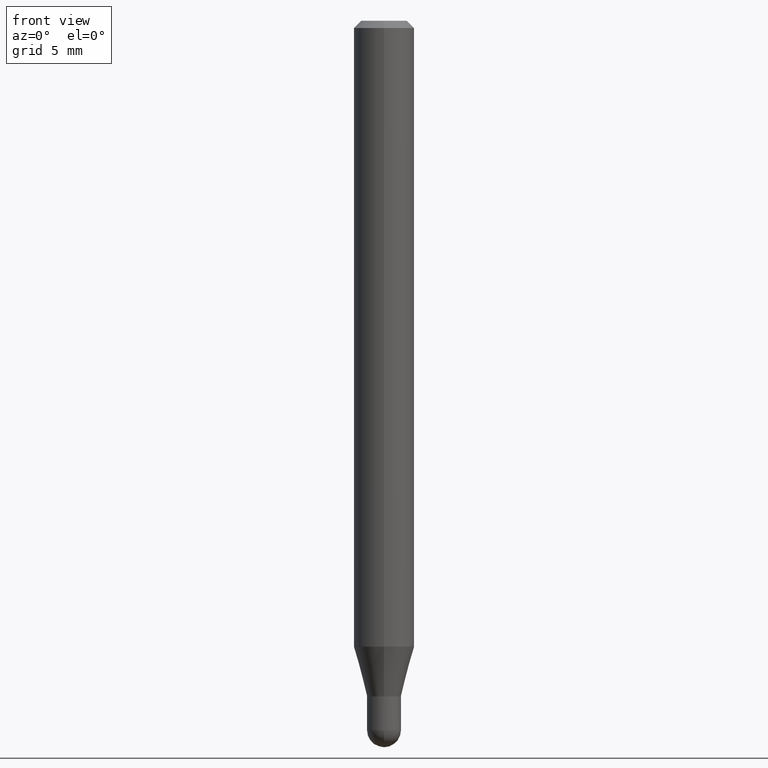
[diagram: clean part render]
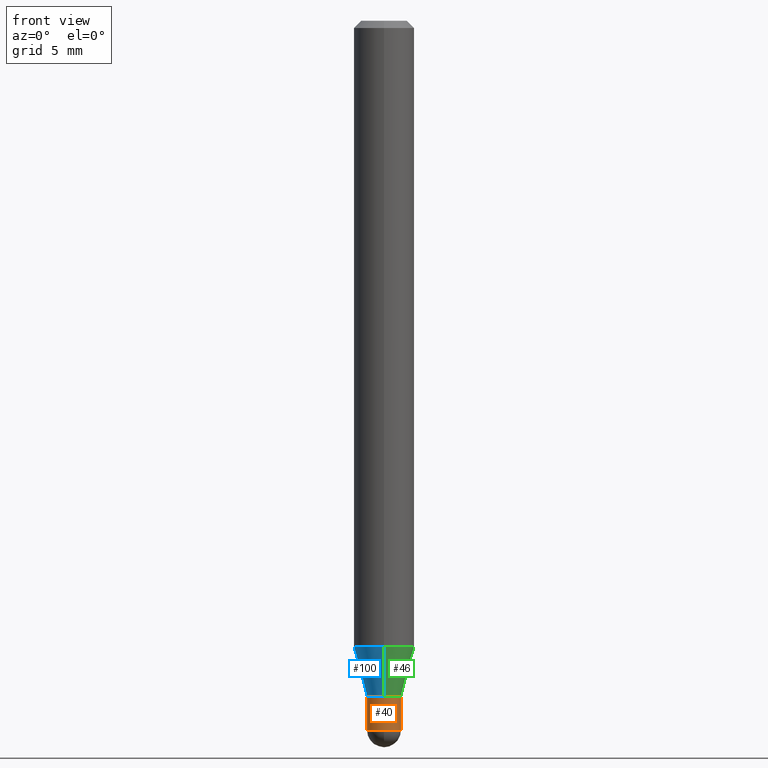
[diagram: same view with three faces highlighted in distinct colors, each labeled with its STEP entity id]
A machine part, front view with three faces highlighted in distinct colors.
Their STEP definitions:

[orange] entity #40 — the highlighted cylindrical surface (edge-blend (fillet) strip) has radius 0.889 mm, axis along (-0, 0, 1).
#2 = VECTOR ( 'NONE', #176, 39.37007874015748143 ) ;
#13 = EDGE_CURVE ( 'NONE', #218, #249, #348, .T. ) ;
#25 = DIRECTION ( 'NONE',  ( 1.000000000000000000, -6.982962677686265922E-15, 4.876176775795936353E-29 ) ) ;
#26 = DIRECTION ( 'NONE',  ( -2.445468806185136597E-29, 3.491481338843145583E-15, 1.000000000000000000 ) ) ;
#27 = VERTEX_POINT ( 'NONE', #110 ) ;
#40 = ADVANCED_FACE ( 'NONE', ( #216 ), #497, .T. ) ;
#55 = AXIS2_PLACEMENT_3D ( 'NONE', #425, #101, #260 ) ;
#101 = DIRECTION ( 'NONE',  ( -2.445468806185136597E-29, 3.491481338843145583E-15, 1.000000000000000000 ) ) ;
#107 = DIRECTION ( 'NONE',  ( -2.445468806185136597E-29, 3.491481338843145583E-15, 1.000000000000000000 ) ) ;
#110 = CARTESIAN_POINT ( 'NONE',  ( 0.03500000000000000333, -5.237222008264717388E-15, -1.464999999999999858 ) ) ;
#132 = ORIENTED_EDGE ( 'NONE', *, *, #13, .F. ) ;
#136 = CARTESIAN_POINT ( 'NONE',  ( 3.411428984628265351E-29, -4.870616467686188228E-15, -1.395000000000000018 ) ) ;
#143 = CARTESIAN_POINT ( 'NONE',  ( 0.000000000000000000, 0.000000000000000000, 0.000000000000000000 ) ) ;
#171 = CIRCLE ( 'NONE', #275, 0.03500000000000000333 ) ;
#176 = DIRECTION ( 'NONE',  ( -2.445468806185136877E-29, 3.491481338843145188E-15, 1.000000000000000000 ) ) ;
#180 = CARTESIAN_POINT ( 'NONE',  ( -0.03500000000000000333, -4.744128357029662925E-15, -1.464999999999999858 ) ) ;
#181 = CARTESIAN_POINT ( 'NONE',  ( -2.444036937189840235E-16, -0.03500000000000519362, -1.464999999999999858 ) ) ;
#188 = AXIS2_PLACEMENT_3D ( 'NONE', #143, #261, #25 ) ;
#189 = DIRECTION ( 'NONE',  ( 1.000000000000000000, -6.982962677686276966E-15, 0.000000000000000000 ) ) ;
#193 = DIRECTION ( 'NONE',  ( 1.000000000000000000, -6.982962677686276966E-15, 0.000000000000000000 ) ) ;
#210 = CARTESIAN_POINT ( 'NONE',  ( 0.03500000000000000333, -2.444036937190193250E-16, 1.706661871528577808E-30 ) ) ;
#216 = FACE_OUTER_BOUND ( 'NONE', #294, .T. ) ;
#218 = VERTEX_POINT ( 'NONE', #180 ) ;
#249 = VERTEX_POINT ( 'NONE', #295 ) ;
#254 = LINE ( 'NONE', #210, #2 ) ;
#259 = VERTEX_POINT ( 'NONE', #181 ) ;
#260 = DIRECTION ( 'NONE',  ( 1.000000000000000000, -6.982962677686276966E-15, 0.000000000000000000 ) ) ;
#261 = DIRECTION ( 'NONE',  ( -2.445468806185136597E-29, 3.491481338843145583E-15, 1.000000000000000000 ) ) ;
#262 = EDGE_CURVE ( 'NONE', #249, #296, #171, .T. ) ;
#263 = ORIENTED_EDGE ( 'NONE', *, *, #366, .T. ) ;
#265 = CARTESIAN_POINT ( 'NONE',  ( 3.582611801061224486E-29, -5.115020161405207405E-15, -1.464999999999999858 ) ) ;
#275 = AXIS2_PLACEMENT_3D ( 'NONE', #136, #26, #189 ) ;
#291 = AXIS2_PLACEMENT_3D ( 'NONE', #265, #107, #193 ) ;
#294 = EDGE_LOOP ( 'NONE', ( #132, #388, #263, #420, #489 ) ) ;
#295 = CARTESIAN_POINT ( 'NONE',  ( -0.03500000000000000333, -4.744128357029662925E-15, -1.395000000000000018 ) ) ;
#296 = VERTEX_POINT ( 'NONE', #458 ) ;
#320 = EDGE_CURVE ( 'NONE', #27, #296, #254, .T. ) ;
#342 = CARTESIAN_POINT ( 'NONE',  ( -0.03500000000000000333, 2.486899575160350887E-16, -1.721627281589217108E-30 ) ) ;
#348 = LINE ( 'NONE', #342, #408 ) ;
#349 = CIRCLE ( 'NONE', #291, 0.03500000000000000333 ) ;
#366 = EDGE_CURVE ( 'NONE', #259, #27, #486, .T. ) ;
#388 = ORIENTED_EDGE ( 'NONE', *, *, #446, .T. ) ;
#408 = VECTOR ( 'NONE', #503, 39.37007874015748143 ) ;
#420 = ORIENTED_EDGE ( 'NONE', *, *, #320, .T. ) ;
#425 = CARTESIAN_POINT ( 'NONE',  ( 3.582611801061224486E-29, -5.115020161405207405E-15, -1.464999999999999858 ) ) ;
#446 = EDGE_CURVE ( 'NONE', #218, #259, #349, .T. ) ;
#458 = CARTESIAN_POINT ( 'NONE',  ( 0.03500000000000000333, -5.115020161405208194E-15, -1.395000000000000018 ) ) ;
#486 = CIRCLE ( 'NONE', #55, 0.03500000000000000333 ) ;
#489 = ORIENTED_EDGE ( 'NONE', *, *, #262, .F. ) ;
#497 = CYLINDRICAL_SURFACE ( 'NONE', #188, 0.03500000000000000333 ) ;
#503 = DIRECTION ( 'NONE',  ( -2.445468806185136877E-29, 3.491481338843145188E-15, 1.000000000000000000 ) ) ;

[blue] entity #100 — the highlighted conical surface has half-angle 15 deg.
#24 = CARTESIAN_POINT ( 'NONE',  ( -4.364351673553602629E-16, -0.06250000000000455191, -1.292368602791858612 ) ) ;
#62 = CARTESIAN_POINT ( 'NONE',  ( 2.486899575160686153E-16, 0.03499999999999505590, -1.395000000000000018 ) ) ;
#67 = ORIENTED_EDGE ( 'NONE', *, *, #363, .F. ) ;
#89 = AXIS2_PLACEMENT_3D ( 'NONE', #460, #140, #300 ) ;
#93 = VERTEX_POINT ( 'NONE', #24 ) ;
#95 = VECTOR ( 'NONE', #469, 39.37007874015748854 ) ;
#100 = ADVANCED_FACE ( 'NONE', ( #129 ), #426, .T. ) ;
#129 = FACE_OUTER_BOUND ( 'NONE', #287, .T. ) ;
#140 = DIRECTION ( 'NONE',  ( -2.445453003853940643E-29, 3.491503968680831010E-15, 1.000000000000000000 ) ) ;
#150 = DIRECTION ( 'NONE',  ( -2.445453003853940643E-29, 3.491503968680831010E-15, 1.000000000000000000 ) ) ;
#169 = ORIENTED_EDGE ( 'NONE', *, *, #358, .F. ) ;
#231 = CARTESIAN_POINT ( 'NONE',  ( -2.444036937189846644E-16, -0.03500000000000479811, -1.395000000000000018 ) ) ;
#247 = CIRCLE ( 'NONE', #477, 0.03499999999999992700 ) ;
#255 = DIRECTION ( 'NONE',  ( -6.982962677686265133E-15, -1.000000000000000000, 0.000000000000000000 ) ) ;
#273 = CARTESIAN_POINT ( 'NONE',  ( -2.444036937189846644E-16, -0.03500000000000479811, -1.395000000000000018 ) ) ;
#287 = EDGE_LOOP ( 'NONE', ( #169, #318, #415, #67 ) ) ;
#298 = VERTEX_POINT ( 'NONE', #383 ) ;
#300 = DIRECTION ( 'NONE',  ( -6.982962677686265922E-15, -1.000000000000000000, 4.370956789862821150E-15 ) ) ;
#318 = ORIENTED_EDGE ( 'NONE', *, *, #351, .T. ) ;
#336 = DIRECTION ( 'NONE',  ( -2.445453003853940643E-29, 3.491503968680831010E-15, 1.000000000000000000 ) ) ;
#351 = EDGE_CURVE ( 'NONE', #457, #491, #247, .T. ) ;
#358 = EDGE_CURVE ( 'NONE', #457, #298, #427, .T. ) ;
#363 = EDGE_CURVE ( 'NONE', #298, #93, #506, .T. ) ;
#375 = DIRECTION ( 'NONE',  ( 1.839019923739648436E-15, 0.2588190451025317307, 0.9659258262890653146 ) ) ;
#383 = CARTESIAN_POINT ( 'NONE',  ( 4.440892098500939734E-16, 0.06249999999999544809, -1.292368602791859056 ) ) ;
#392 = CARTESIAN_POINT ( 'NONE',  ( 3.411406940376247154E-29, -4.870648036309759893E-15, -1.395000000000000018 ) ) ;
#409 = VECTOR ( 'NONE', #375, 39.37007874015748143 ) ;
#415 = ORIENTED_EDGE ( 'NONE', *, *, #470, .T. ) ;
#421 = DIRECTION ( 'NONE',  ( -6.982962677686265133E-15, -1.000000000000000000, 0.000000000000000000 ) ) ;
#426 = CONICAL_SURFACE ( 'NONE', #485, 0.03499999999999992700, 0.2617993877991572904 ) ;
#427 = LINE ( 'NONE', #62, #409 ) ;
#457 = VERTEX_POINT ( 'NONE', #474 ) ;
#460 = CARTESIAN_POINT ( 'NONE',  ( 3.160426681783871860E-29, -4.512310105646275216E-15, -1.292368602791858834 ) ) ;
#469 = DIRECTION ( 'NONE',  ( -1.807323732225377471E-15, -0.2588190451025249583, 0.9659258262890670910 ) ) ;
#470 = EDGE_CURVE ( 'NONE', #491, #93, #507, .T. ) ;
#474 = CARTESIAN_POINT ( 'NONE',  ( 3.463895836830814916E-16, 0.03499999999999505590, -1.395000000000000018 ) ) ;
#477 = AXIS2_PLACEMENT_3D ( 'NONE', #494, #336, #421 ) ;
#485 = AXIS2_PLACEMENT_3D ( 'NONE', #392, #150, #255 ) ;
#491 = VERTEX_POINT ( 'NONE', #231 ) ;
#494 = CARTESIAN_POINT ( 'NONE',  ( 3.411406940376247154E-29, -4.870648036309759893E-15, -1.395000000000000018 ) ) ;
#506 = CIRCLE ( 'NONE', #89, 0.06250000000000000000 ) ;
#507 = LINE ( 'NONE', #273, #95 ) ;

[green] entity #46 — the highlighted conical surface has half-angle 15 deg.
#16 = DIRECTION ( 'NONE',  ( -2.445453003853940643E-29, 3.491503968680831010E-15, 1.000000000000000000 ) ) ;
#24 = CARTESIAN_POINT ( 'NONE',  ( -4.364351673553602629E-16, -0.06250000000000455191, -1.292368602791858612 ) ) ;
#46 = ADVANCED_FACE ( 'NONE', ( #303 ), #162, .T. ) ;
#62 = CARTESIAN_POINT ( 'NONE',  ( 2.486899575160686153E-16, 0.03499999999999505590, -1.395000000000000018 ) ) ;
#63 = CARTESIAN_POINT ( 'NONE',  ( 3.411406940376247154E-29, -4.870648036309759893E-15, -1.395000000000000018 ) ) ;
#69 = DIRECTION ( 'NONE',  ( -2.445453003853940643E-29, 3.491503968680831010E-15, 1.000000000000000000 ) ) ;
#74 = EDGE_LOOP ( 'NONE', ( #236, #175, #223, #166 ) ) ;
#93 = VERTEX_POINT ( 'NONE', #24 ) ;
#95 = VECTOR ( 'NONE', #469, 39.37007874015748854 ) ;
#96 = DIRECTION ( 'NONE',  ( -6.982962677686265922E-15, -1.000000000000000000, 4.370956789862821150E-15 ) ) ;
#97 = DIRECTION ( 'NONE',  ( -2.445453003853940643E-29, 3.491503968680831010E-15, 1.000000000000000000 ) ) ;
#162 = CONICAL_SURFACE ( 'NONE', #309, 0.03499999999999992700, 0.2617993877991572904 ) ;
#166 = ORIENTED_EDGE ( 'NONE', *, *, #470, .F. ) ;
#175 = ORIENTED_EDGE ( 'NONE', *, *, #358, .T. ) ;
#184 = DIRECTION ( 'NONE',  ( -6.982962677686265133E-15, -1.000000000000000000, 0.000000000000000000 ) ) ;
#222 = DIRECTION ( 'NONE',  ( -6.982962677686265133E-15, -1.000000000000000000, 0.000000000000000000 ) ) ;
#223 = ORIENTED_EDGE ( 'NONE', *, *, #284, .F. ) ;
#227 = AXIS2_PLACEMENT_3D ( 'NONE', #63, #97, #184 ) ;
#231 = CARTESIAN_POINT ( 'NONE',  ( -2.444036937189846644E-16, -0.03500000000000479811, -1.395000000000000018 ) ) ;
#233 = CIRCLE ( 'NONE', #227, 0.03499999999999992700 ) ;
#236 = ORIENTED_EDGE ( 'NONE', *, *, #272, .T. ) ;
#272 = EDGE_CURVE ( 'NONE', #491, #457, #233, .T. ) ;
#273 = CARTESIAN_POINT ( 'NONE',  ( -2.444036937189846644E-16, -0.03500000000000479811, -1.395000000000000018 ) ) ;
#284 = EDGE_CURVE ( 'NONE', #93, #298, #461, .T. ) ;
#298 = VERTEX_POINT ( 'NONE', #383 ) ;
#303 = FACE_OUTER_BOUND ( 'NONE', #74, .T. ) ;
#309 = AXIS2_PLACEMENT_3D ( 'NONE', #428, #69, #222 ) ;
#358 = EDGE_CURVE ( 'NONE', #457, #298, #427, .T. ) ;
#375 = DIRECTION ( 'NONE',  ( 1.839019923739648436E-15, 0.2588190451025317307, 0.9659258262890653146 ) ) ;
#383 = CARTESIAN_POINT ( 'NONE',  ( 4.440892098500939734E-16, 0.06249999999999544809, -1.292368602791859056 ) ) ;
#399 = AXIS2_PLACEMENT_3D ( 'NONE', #450, #16, #96 ) ;
#409 = VECTOR ( 'NONE', #375, 39.37007874015748143 ) ;
#427 = LINE ( 'NONE', #62, #409 ) ;
#428 = CARTESIAN_POINT ( 'NONE',  ( 3.411406940376247154E-29, -4.870648036309759893E-15, -1.395000000000000018 ) ) ;
#450 = CARTESIAN_POINT ( 'NONE',  ( 3.160426681783871860E-29, -4.512310105646275216E-15, -1.292368602791858834 ) ) ;
#457 = VERTEX_POINT ( 'NONE', #474 ) ;
#461 = CIRCLE ( 'NONE', #399, 0.06250000000000000000 ) ;
#469 = DIRECTION ( 'NONE',  ( -1.807323732225377471E-15, -0.2588190451025249583, 0.9659258262890670910 ) ) ;
#470 = EDGE_CURVE ( 'NONE', #491, #93, #507, .T. ) ;
#474 = CARTESIAN_POINT ( 'NONE',  ( 3.463895836830814916E-16, 0.03499999999999505590, -1.395000000000000018 ) ) ;
#491 = VERTEX_POINT ( 'NONE', #231 ) ;
#507 = LINE ( 'NONE', #273, #95 ) ;